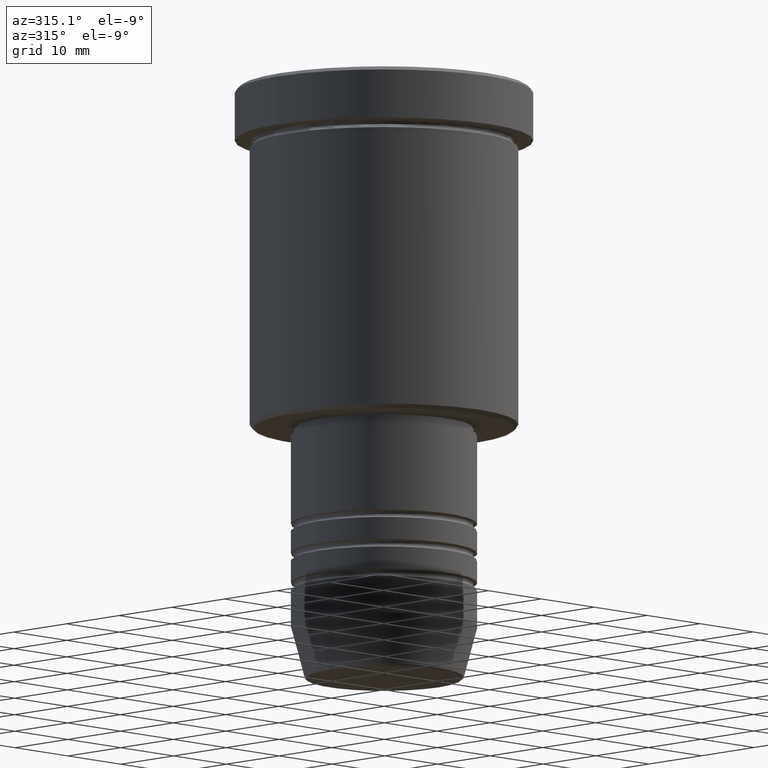
[diagram: clean part render]
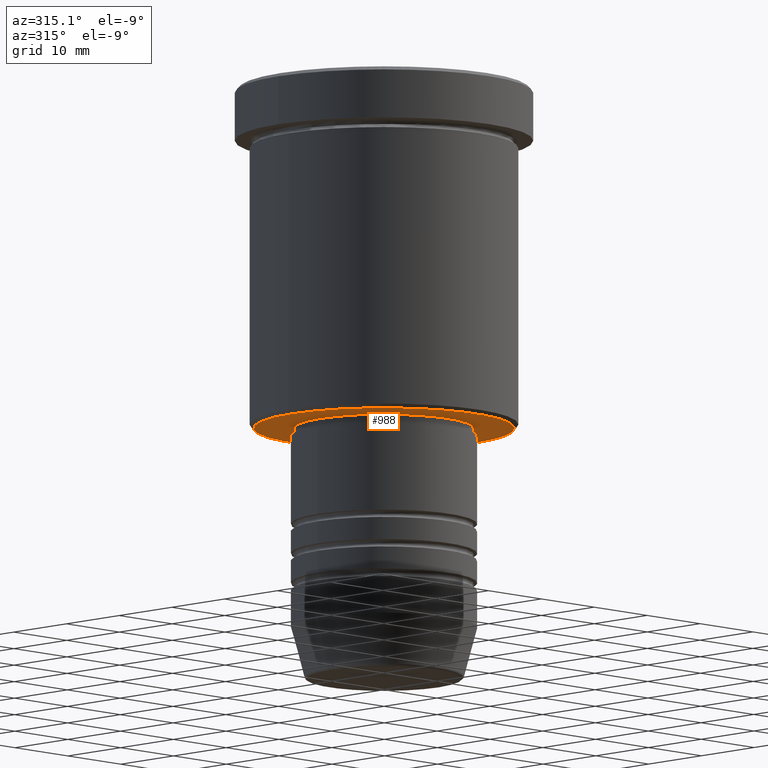
[diagram: same view with one face highlighted and labeled with its STEP entity id]
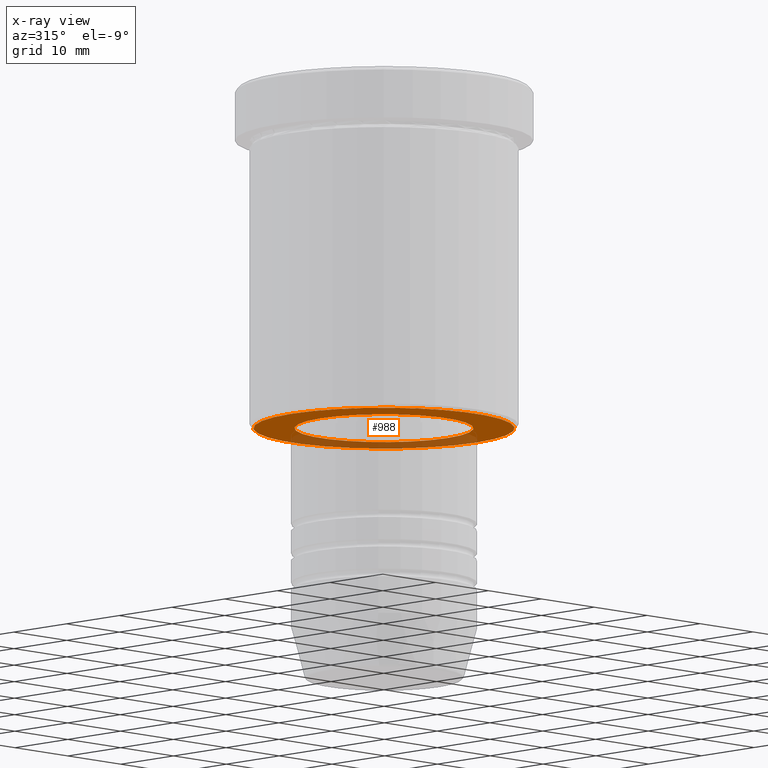
[diagram: x-ray of the same camera — body ghosted, the highlighted face saturated]
A machine part, auxiliary view. The second image highlights one B-rep face of the part: STEP entity #988.
The next image is the same camera in x-ray: the body ghosted, the highlighted face saturated — about 31% of this face is hidden behind the body in this view.
In plain terms, the highlighted planar face has unit normal (0, 0, -1).
Its self-contained STEP definition (entity closure, byte-faithful):
#2 = ORIENTED_EDGE ( 'NONE', *, *, #878, .T. ) ;
#39 = CARTESIAN_POINT ( 'NONE',  ( 17.50000000000000000, 0.000000000000000000, -46.00000000000000000 ) ) ;
#57 = CARTESIAN_POINT ( 'NONE',  ( 0.000000000000000000, 0.000000000000000000, -46.00000000000000000 ) ) ;
#78 = DIRECTION ( 'NONE',  ( -1.000000000000000000, 0.000000000000000000, -0.000000000000000000 ) ) ;
#126 = AXIS2_PLACEMENT_3D ( 'NONE', #1064, #1060, #251 ) ;
#148 = AXIS2_PLACEMENT_3D ( 'NONE', #381, #558, #78 ) ;
#165 = CARTESIAN_POINT ( 'NONE',  ( -12.00000000000000000, 1.469576158976823947E-15, -46.00000000000000000 ) ) ;
#220 = AXIS2_PLACEMENT_3D ( 'NONE', #549, #829, #736 ) ;
#251 = DIRECTION ( 'NONE',  ( 1.000000000000000000, 0.000000000000000000, 0.000000000000000000 ) ) ;
#279 = CARTESIAN_POINT ( 'NONE',  ( 12.00000000000000000, 0.000000000000000000, -46.00000000000000000 ) ) ;
#288 = ORIENTED_EDGE ( 'NONE', *, *, #1162, .T. ) ;
#293 = CIRCLE ( 'NONE', #126, 12.00000000000000000 ) ;
#381 = CARTESIAN_POINT ( 'NONE',  ( 0.000000000000000000, 18.00000000000000000, -46.00000000000000000 ) ) ;
#393 = AXIS2_PLACEMENT_3D ( 'NONE', #590, #743, #657 ) ;
#398 = CARTESIAN_POINT ( 'NONE',  ( -17.50000000000000000, 2.173748068486551641E-15, -46.00000000000000000 ) ) ;
#430 = EDGE_CURVE ( 'NONE', #621, #1108, #808, .T. ) ;
#442 = EDGE_LOOP ( 'NONE', ( #2, #288 ) ) ;
#456 = FACE_BOUND ( 'NONE', #442, .T. ) ;
#536 = DIRECTION ( 'NONE',  ( -1.000000000000000000, 0.000000000000000000, 0.000000000000000000 ) ) ;
#542 = CIRCLE ( 'NONE', #220, 17.50000000000000000 ) ;
#549 = CARTESIAN_POINT ( 'NONE',  ( 0.000000000000000000, 0.000000000000000000, -46.00000000000000000 ) ) ;
#558 = DIRECTION ( 'NONE',  ( 0.000000000000000000, 0.000000000000000000, -1.000000000000000000 ) ) ;
#585 = EDGE_CURVE ( 'NONE', #1108, #621, #542, .T. ) ;
#590 = CARTESIAN_POINT ( 'NONE',  ( 0.000000000000000000, 0.000000000000000000, -46.00000000000000000 ) ) ;
#621 = VERTEX_POINT ( 'NONE', #398 ) ;
#627 = EDGE_LOOP ( 'NONE', ( #818, #876 ) ) ;
#657 = DIRECTION ( 'NONE',  ( 1.000000000000000000, 0.000000000000000000, 0.000000000000000000 ) ) ;
#736 = DIRECTION ( 'NONE',  ( -1.000000000000000000, 0.000000000000000000, 0.000000000000000000 ) ) ;
#743 = DIRECTION ( 'NONE',  ( -0.000000000000000000, -0.000000000000000000, 1.000000000000000000 ) ) ;
#808 = CIRCLE ( 'NONE', #866, 17.50000000000000000 ) ;
#818 = ORIENTED_EDGE ( 'NONE', *, *, #585, .T. ) ;
#825 = VERTEX_POINT ( 'NONE', #165 ) ;
#829 = DIRECTION ( 'NONE',  ( 0.000000000000000000, 0.000000000000000000, -1.000000000000000000 ) ) ;
#866 = AXIS2_PLACEMENT_3D ( 'NONE', #57, #1161, #536 ) ;
#876 = ORIENTED_EDGE ( 'NONE', *, *, #430, .T. ) ;
#878 = EDGE_CURVE ( 'NONE', #921, #825, #293, .T. ) ;
#916 = FACE_OUTER_BOUND ( 'NONE', #627, .T. ) ;
#921 = VERTEX_POINT ( 'NONE', #279 ) ;
#965 = CIRCLE ( 'NONE', #393, 12.00000000000000000 ) ;
#988 = ADVANCED_FACE ( 'NONE', ( #916, #456 ), #1099, .T. ) ;
#1060 = DIRECTION ( 'NONE',  ( -0.000000000000000000, -0.000000000000000000, 1.000000000000000000 ) ) ;
#1064 = CARTESIAN_POINT ( 'NONE',  ( 0.000000000000000000, 0.000000000000000000, -46.00000000000000000 ) ) ;
#1099 = PLANE ( 'NONE',  #148 ) ;
#1108 = VERTEX_POINT ( 'NONE', #39 ) ;
#1161 = DIRECTION ( 'NONE',  ( 0.000000000000000000, 0.000000000000000000, -1.000000000000000000 ) ) ;
#1162 = EDGE_CURVE ( 'NONE', #825, #921, #965, .T. ) ;